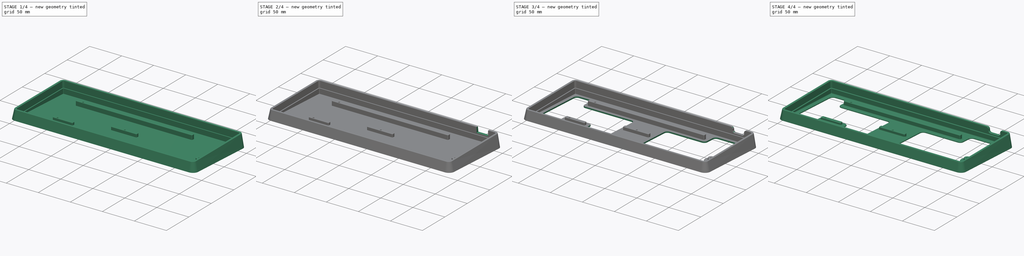
[diagram: build sequence overview — one tinted view per stage of 4, left to right]
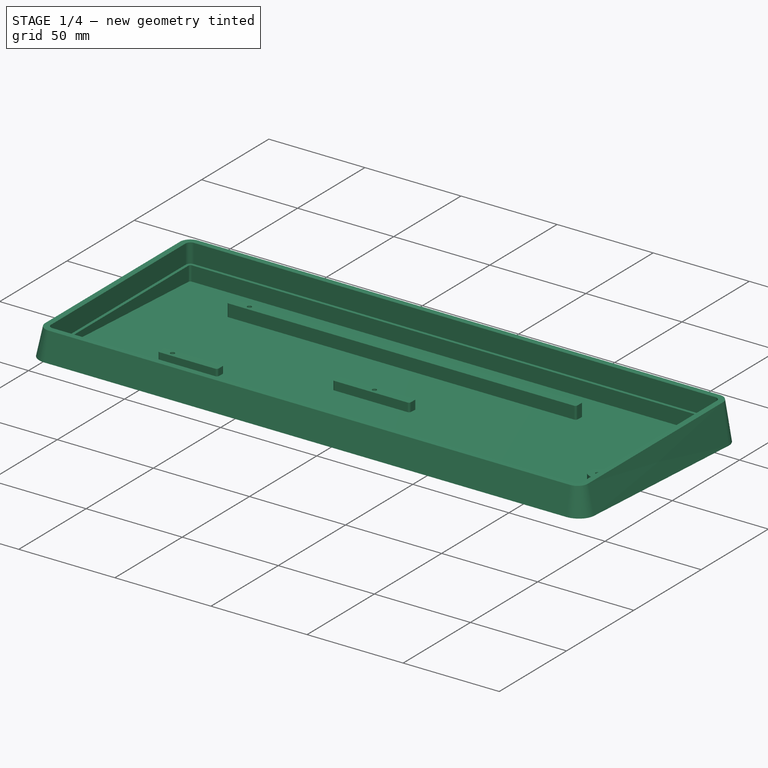
[diagram: stage 1 of 4 — iso view after this stage's code; geometry added in this stage tinted green]
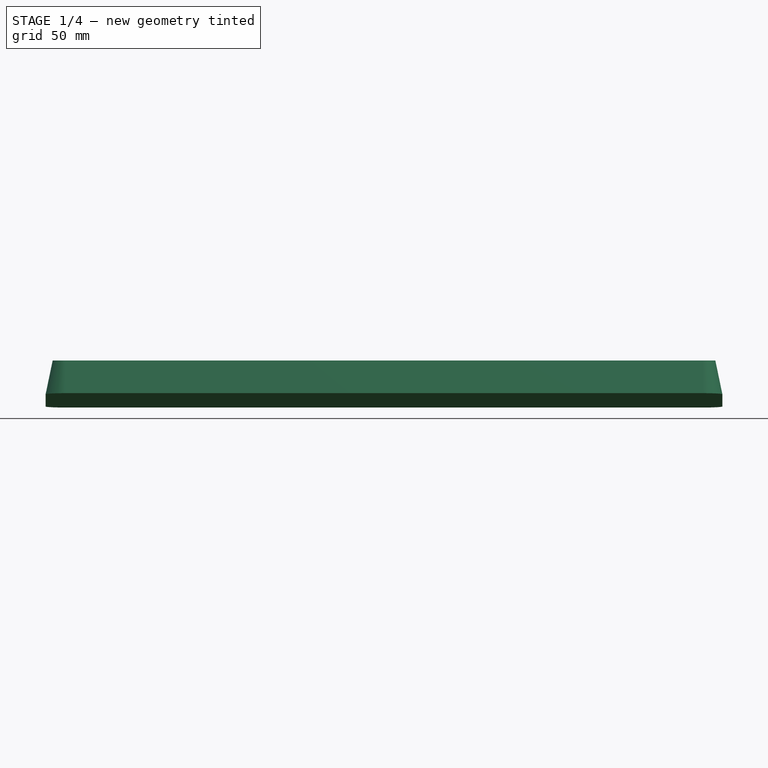
[diagram: stage 1 of 4 — front view after this stage's code; geometry added in this stage tinted green]
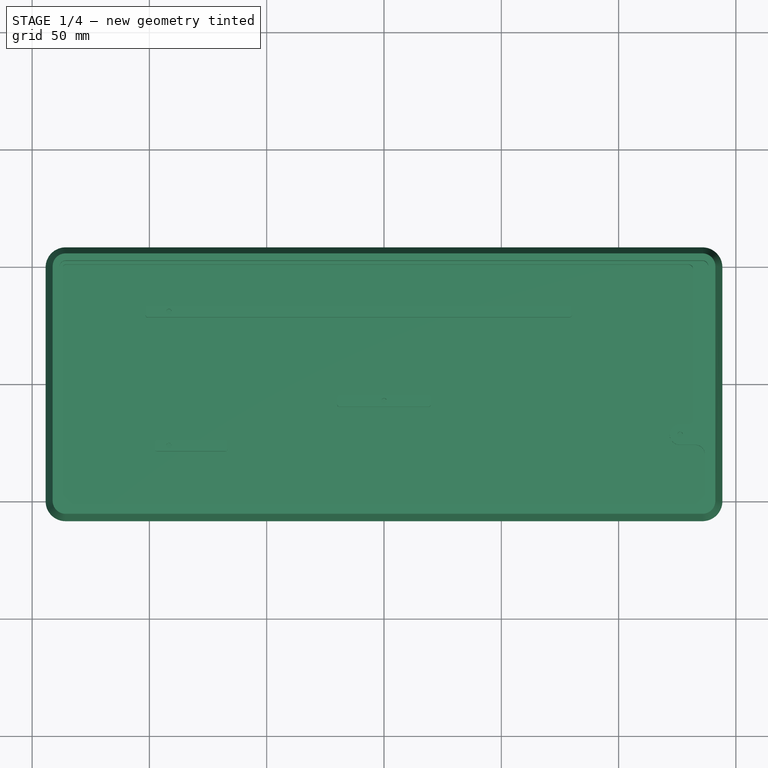
[diagram: stage 1 of 4 — top view after this stage's code; geometry added in this stage tinted green]
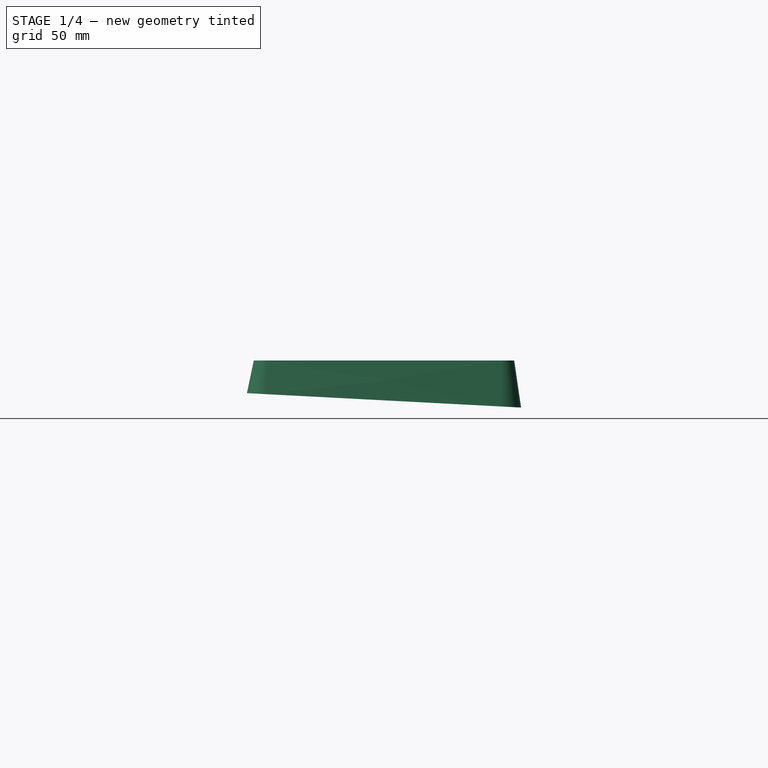
[diagram: stage 1 of 4 — right view after this stage's code; geometry added in this stage tinted green]
FCSTD DOCUMENT  (FreeCAD 0.21R)
Label: 65petit-case
License: All rights reserved
LicenseURL: http://en.wikipedia.org/wiki/All_rights_reserved
objects: Sketcher::SketchObject×7, PartDesign::Pocket×4, PartDesign::Fillet×4, PartDesign::AdditiveLoft×1, PartDesign::Hole×1, PartDesign::Chamfer×1, PartDesign::Body×1
note: 30 computed .brp shape members not serialized (recipe doc carries the construction recipe); baked Part::Feature solids carry a one-line shape summary decoded from their .brp

FEATURE [Sketcher::SketchObject] Sketch
  AttachmentOffset = pos=(0,0,0) rot=(1,0,0;-0.05236rad)
  FullyConstrained = false
  MapMode = 5
  Placement = pos=(0,0,0) rot=(1,0,0;6.23083rad)
  Support = -> [XY_Plane]
  sketch-geometry (8):
    g0: ArcOfCircle CenterX=135.731 CenterY=50.0063 CenterZ=0 NormalX=0 NormalY=0 NormalZ=1 AngleXU=0 Radius=8.5 StartAngle=0 EndAngle=1.5708
    g1: LineSegment StartX=144.231 StartY=-50.0062 StartZ=0 EndX=144.231 EndY=50.0063 EndZ=0
    g2: ArcOfCircle CenterX=135.731 CenterY=-50.0062 CenterZ=0 NormalX=0 NormalY=0 NormalZ=1 AngleXU=0 Radius=8.5 StartAngle=4.71239 EndAngle=6.28319
    g3: LineSegment StartX=-135.731 StartY=-58.5062 StartZ=0 EndX=135.731 EndY=-58.5062 EndZ=0
    g4: LineSegment StartX=-135.731 StartY=58.5063 StartZ=0 EndX=135.731 EndY=58.5063 EndZ=0
    g5: ArcOfCircle CenterX=-135.731 CenterY=-50.0062 CenterZ=0 NormalX=0 NormalY=0 NormalZ=1 AngleXU=0 Radius=8.5 StartAngle=3.14159 EndAngle=4.71239
    g6: LineSegment StartX=-144.231 StartY=-50.0062 StartZ=0 EndX=-144.231 EndY=50.0063 EndZ=0
    g7: ArcOfCircle CenterX=-135.731 CenterY=50.0063 CenterZ=0 NormalX=0 NormalY=0 NormalZ=1 AngleXU=0 Radius=8.5 StartAngle=1.5708 EndAngle=3.14159
  constraints (8):
    c: Coincident(g5,g6)
    c: Coincident(g6,g7)
    c: Coincident(g3,g5)
    c: Coincident(g4,g7)
    c: Coincident(g2,g3)
    c: Coincident(g0,g4)
    c: Coincident(g1,g2)
    c: Coincident(g0,g1)
FEATURE [Sketcher::SketchObject] Sketch001
  AttachmentOffset = pos=(0,0,17) rot=(0,0,1;0rad)
  FullyConstrained = false
  MapMode = 5
  Placement = pos=(0,0,17) rot=(0,0,1;0rad)
  Support = -> [XY_Plane]
  sketch-geometry (8):
    g0: ArcOfCircle CenterX=-135.731 CenterY=50.0063 CenterZ=0 NormalX=0 NormalY=0 NormalZ=1 AngleXU=0 Radius=5.5 StartAngle=1.5708 EndAngle=3.14159
    g1: LineSegment StartX=-135.731 StartY=55.5063 StartZ=0 EndX=135.731 EndY=55.5063 EndZ=0
    g2: LineSegment StartX=-141.231 StartY=-50.0062 StartZ=0 EndX=-141.231 EndY=50.0063 EndZ=0
    g3: LineSegment StartX=-135.731 StartY=-55.5062 StartZ=0 EndX=135.731 EndY=-55.5062 EndZ=0
    g4: ArcOfCircle CenterX=-135.731 CenterY=-50.0062 CenterZ=0 NormalX=0 NormalY=0 NormalZ=1 AngleXU=0 Radius=5.5 StartAngle=3.14159 EndAngle=4.71239
    g5: ArcOfCircle CenterX=135.731 CenterY=-50.0062 CenterZ=0 NormalX=0 NormalY=0 NormalZ=1 AngleXU=0 Radius=5.5 StartAngle=4.71239 EndAngle=6.28319
    g6: LineSegment StartX=141.231 StartY=-50.0062 StartZ=0 EndX=141.231 EndY=50.0063 EndZ=0
    g7: ArcOfCircle CenterX=135.731 CenterY=50.0063 CenterZ=0 NormalX=0 NormalY=0 NormalZ=1 AngleXU=0 Radius=5.5 StartAngle=0 EndAngle=1.5708
  constraints (8):
    c: Coincident(g2,g4)
    c: Coincident(g0,g2)
    c: Coincident(g3,g4)
    c: Coincident(g0,g1)
    c: Coincident(g3,g5)
    c: Coincident(g1,g7)
    c: Coincident(g5,g6)
    c: Coincident(g6,g7)
FEATURE [PartDesign::AdditiveLoft] AdditiveLoft
  Closed = false
  Profile = -> Sketch001
  Ruled = true
  Sections = -> [Sketch]
FEATURE [Sketcher::SketchObject] Sketch002
  FullyConstrained = false
  MapMode = 5
  Placement = pos=(0,0,17) rot=(0,0,1;0rad)
  Support = -> [AdditiveLoft]
  sketch-geometry (8):
    g0: ArcOfCircle CenterX=135.731 CenterY=50.0063 CenterZ=0 NormalX=0 NormalY=0 NormalZ=1 AngleXU=0 Radius=2.5 StartAngle=0 EndAngle=1.5708
    g1: LineSegment StartX=138.231 StartY=-50.0062 StartZ=0 EndX=138.231 EndY=50.0063 EndZ=0
    g2: LineSegment StartX=-135.731 StartY=52.5063 StartZ=0 EndX=135.731 EndY=52.5063 EndZ=0
    g3: ArcOfCircle CenterX=135.731 CenterY=-50.0062 CenterZ=0 NormalX=0 NormalY=0 NormalZ=1 AngleXU=0 Radius=2.5 StartAngle=4.71239 EndAngle=6.28319
    g4: LineSegment StartX=-135.731 StartY=-52.5062 StartZ=0 EndX=135.731 EndY=-52.5062 EndZ=0
    g5: ArcOfCircle CenterX=-135.731 CenterY=-50.0062 CenterZ=0 NormalX=0 NormalY=0 NormalZ=1 AngleXU=0 Radius=2.5 StartAngle=3.14159 EndAngle=4.71239
    g6: LineSegment StartX=-138.231 StartY=-50.0062 StartZ=0 EndX=-138.231 EndY=50.0063 EndZ=0
    g7: ArcOfCircle CenterX=-135.731 CenterY=50.0063 CenterZ=0 NormalX=0 NormalY=0 NormalZ=1 AngleXU=0 Radius=2.5 StartAngle=1.5708 EndAngle=3.14159
  constraints (8):
    c: Coincident(g5,g6)
    c: Coincident(g6,g7)
    c: Coincident(g4,g5)
    c: Coincident(g2,g7)
    c: Coincident(g3,g4)
    c: Coincident(g0,g2)
    c: Coincident(g1,g3)
    c: Coincident(g0,g1)
FEATURE [Sketcher::SketchObject] Sketch006
  FullyConstrained = false
  MapMode = 5
  Placement = pos=(0,0,17) rot=(0,0,1;0rad)
  Support = -> [AdditiveLoft]
  sketch-geometry (4):
    g0: LineSegment StartX=107.681 StartY=50.0063 StartZ=0 EndX=125.681 EndY=50.0063 EndZ=0
    g1: LineSegment StartX=125.681 StartY=50.0063 StartZ=0 EndX=125.681 EndY=63 EndZ=0
    g2: LineSegment StartX=107.681 StartY=63 StartZ=0 EndX=125.681 EndY=63 EndZ=0
    g3: LineSegment StartX=107.681 StartY=50.0063 StartZ=0 EndX=107.681 EndY=63 EndZ=0
  constraints (4):
    c: Coincident(g0,g3)
    c: Coincident(g2,g3)
    c: Coincident(g0,g1)
    c: Coincident(g1,g2)
FEATURE [PartDesign::Pocket] Pocket
  BaseFeature = -> AdditiveLoft
  Direction = (0,0,-1)
  Length = 10
  Length2 = 5
  Profile = -> Sketch002
  ReferenceAxis = -> Sketch002 [N_Axis]
  Type = 0
FEATURE [Sketcher::SketchObject] Sketch003
  FullyConstrained = false
  MapMode = 5
  Placement = pos=(0,0,7) rot=(0,0,1;0rad)
  Support = -> [Pocket]
  sketch-geometry (46):
    g0: ArcOfCircle CenterX=-135.731 CenterY=50.0063 CenterZ=0 NormalX=0 NormalY=0 NormalZ=1 AngleXU=0 Radius=1 StartAngle=1.5708 EndAngle=3.14159
    g1: LineSegment StartX=132.731 StartY=-25.9312 StartZ=0 EndX=126.206 EndY=-25.9312 EndZ=0
    g2: ArcOfCircle CenterX=132.731 CenterY=-29.9312 CenterZ=0 NormalX=0 NormalY=0 NormalZ=1 AngleXU=0 Radius=4 StartAngle=0 EndAngle=1.5708
    g3: ArcOfCircle CenterX=126.206 CenterY=-21.4312 CenterZ=0 NormalX=0 NormalY=0 NormalZ=1 AngleXU=0 Radius=4.5 StartAngle=1.5708 EndAngle=4.71239
    g4: LineSegment StartX=-135.731 StartY=51.0063 StartZ=0 EndX=129.731 EndY=51.0063 EndZ=0
    g5: ArcOfCircle CenterX=129.731 CenterY=49.0063 CenterZ=0 NormalX=0 NormalY=0 NormalZ=1 AngleXU=0 Radius=2 StartAngle=0 EndAngle=1.5708
    g6: LineSegment StartX=129.731 StartY=-16.9312 StartZ=0 EndX=126.206 EndY=-16.9312 EndZ=0
    g7: LineSegment StartX=131.731 StartY=-14.9312 StartZ=0 EndX=131.731 EndY=49.0063 EndZ=0
    g8: ArcOfCircle CenterX=129.731 CenterY=-14.9312 CenterZ=0 NormalX=0 NormalY=0 NormalZ=1 AngleXU=0 Radius=2 StartAngle=4.71239 EndAngle=6.28319
    g9: Circle CenterX=-1.42e-14 CenterY=-7.12472 CenterZ=0 NormalX=0 NormalY=0 NormalZ=-1 AngleXU=0 Radius=1.1
    g10: Circle CenterX=-91.6781 CenterY=30.9563 CenterZ=0 NormalX=0 NormalY=0 NormalZ=-1 AngleXU=0 Radius=1.1
    g11: Circle CenterX=-91.6781 CenterY=-26.1937 CenterZ=0 NormalX=0 NormalY=0 NormalZ=-1 AngleXU=0 Radius=1.1
    g12: ArcOfCircle CenterX=-100.678 CenterY=32.4563 CenterZ=0 NormalX=0 NormalY=0 NormalZ=1 AngleXU=0 Radius=1 StartAngle=1.5708 EndAngle=3.14159
    g13: LineSegment StartX=-101.678 StartY=29.4563 StartZ=0 EndX=-101.678 EndY=32.4563 EndZ=0
    g14: ArcOfCircle CenterX=-100.678 CenterY=29.4563 CenterZ=0 NormalX=0 NormalY=0 NormalZ=1 AngleXU=0 Radius=1 StartAngle=3.14159 EndAngle=4.71239
    g15: Circle CenterX=126.206 CenterY=-21.4312 CenterZ=0 NormalX=0 NormalY=0 NormalZ=-1 AngleXU=0 Radius=1.1
    g16: LineSegment StartX=136.731 StartY=-46.7636 StartZ=0 EndX=136.731 EndY=-29.9312 EndZ=0
    g17: ArcOfCircle CenterX=135.731 CenterY=-46.7636 CenterZ=0 NormalX=0 NormalY=0 NormalZ=1 AngleXU=0 Radius=1 StartAngle=5.49779 EndAngle=6.28319
    g18: LineSegment StartX=133.196 StartY=-50.7134 StartZ=0 EndX=136.438 EndY=-47.4707 EndZ=0
    g19: ArcOfCircle CenterX=132.489 CenterY=-50.0062 CenterZ=0 NormalX=0 NormalY=0 NormalZ=1 AngleXU=0 Radius=1 StartAngle=4.71239 EndAngle=5.49779
    g20: LineSegment StartX=-132.489 StartY=-51.0062 StartZ=0 EndX=132.489 EndY=-51.0062 EndZ=0
    g21: ArcOfCircle CenterX=-132.489 CenterY=-50.0062 CenterZ=0 NormalX=0 NormalY=0 NormalZ=1 AngleXU=0 Radius=1 StartAngle=3.92699 EndAngle=4.71239
    g22: LineSegment StartX=-136.438 StartY=-47.4707 StartZ=0 EndX=-133.196 EndY=-50.7134 EndZ=0
    g23: LineSegment StartX=-136.731 StartY=-46.7636 StartZ=0 EndX=-136.731 EndY=50.0063 EndZ=0
    g24: ArcOfCircle CenterX=-135.731 CenterY=-46.7636 CenterZ=0 NormalX=0 NormalY=0 NormalZ=1 AngleXU=0 Radius=1 StartAngle=3.14159 EndAngle=3.92699
    g25: LineSegment StartX=-100.678 StartY=33.4563 StartZ=0 EndX=79 EndY=33.4563 EndZ=0
    g26: ArcOfCircle CenterX=79 CenterY=32.4563 CenterZ=0 NormalX=0 NormalY=0 NormalZ=1 AngleXU=0 Radius=1 StartAngle=0 EndAngle=1.5708
    g27: LineSegment StartX=-100.678 StartY=28.4563 StartZ=0 EndX=79 EndY=28.4563 EndZ=0
    g28: LineSegment StartX=80 StartY=32.4563 StartZ=0 EndX=80 EndY=29.4563 EndZ=0
    g29: ArcOfCircle CenterX=79 CenterY=29.4563 CenterZ=0 NormalX=0 NormalY=0 NormalZ=1 AngleXU=0 Radius=1 StartAngle=4.71239 EndAngle=6.28319
    g30: ArcOfCircle CenterX=-96.6781 CenterY=-24.6937 CenterZ=0 NormalX=0 NormalY=0 NormalZ=1 AngleXU=0 Radius=1 StartAngle=1.5708 EndAngle=3.14159
    g31: LineSegment StartX=-97.6781 StartY=-27.6937 StartZ=0 EndX=-97.6781 EndY=-24.6937 EndZ=0
    g32: ArcOfCircle CenterX=-96.6781 CenterY=-27.6937 CenterZ=0 NormalX=0 NormalY=0 NormalZ=1 AngleXU=0 Radius=1 StartAngle=3.14159 EndAngle=4.71239
    g33: LineSegment StartX=-96.6781 StartY=-23.6937 StartZ=0 EndX=-67.6781 EndY=-23.6937 EndZ=0
    g34: ArcOfCircle CenterX=-67.6781 CenterY=-24.6937 CenterZ=0 NormalX=0 NormalY=0 NormalZ=1 AngleXU=0 Radius=1 StartAngle=0 EndAngle=1.5708
    g35: LineSegment StartX=-66.6781 StartY=-27.6937 StartZ=0 EndX=-66.6781 EndY=-24.6937 EndZ=0
    g36: LineSegment StartX=-96.6781 StartY=-28.6937 StartZ=0 EndX=-67.6781 EndY=-28.6937 EndZ=0
    g37: ArcOfCircle CenterX=-67.6781 CenterY=-27.6937 CenterZ=0 NormalX=0 NormalY=0 NormalZ=1 AngleXU=0 Radius=1 StartAngle=4.71239 EndAngle=6.28319
    g38: ArcOfCircle CenterX=19 CenterY=-5.62472 CenterZ=0 NormalX=0 NormalY=0 NormalZ=1 AngleXU=0 Radius=1 StartAngle=0 EndAngle=1.5708
    g39: LineSegment StartX=20 StartY=-5.62472 StartZ=0 EndX=20 EndY=-8.62472 EndZ=0
    g40: ArcOfCircle CenterX=19 CenterY=-8.62472 CenterZ=0 NormalX=0 NormalY=0 NormalZ=1 AngleXU=0 Radius=1 StartAngle=4.71239 EndAngle=6.28319
    g41: LineSegment StartX=-19 StartY=-9.62472 StartZ=0 EndX=19 EndY=-9.62472 EndZ=0
    g42: ArcOfCircle CenterX=-19 CenterY=-8.62472 CenterZ=0 NormalX=0 NormalY=0 NormalZ=1 AngleXU=0 Radius=1 StartAngle=3.14159 EndAngle=4.71239
    g43: LineSegment StartX=-20 StartY=-5.62472 StartZ=0 EndX=-20 EndY=-8.62472 EndZ=0
    g44: LineSegment StartX=-19 StartY=-4.62472 StartZ=0 EndX=19 EndY=-4.62472 EndZ=0
    g45: ArcOfCircle CenterX=-19 CenterY=-5.62472 CenterZ=0 NormalX=0 NormalY=0 NormalZ=1 AngleXU=0 Radius=1 StartAngle=1.5708 EndAngle=3.14159
  constraints (42):
    c: Coincident(g23,g24)
    c: Coincident(g0,g23)
    c: Coincident(g22,g24)
    c: Coincident(g0,g4)
    c: Coincident(g21,g22)
    c: Coincident(g20,g21)
    c: Coincident(g13,g14)
    c: Coincident(g12,g13)
    c: Coincident(g14,g27)
    c: Coincident(g12,g25)
    c: Coincident(g31,g32)
    c: Coincident(g30,g31)
    c: Coincident(g32,g36)
    c: Coincident(g30,g33)
    c: Coincident(g36,g37)
    c: Coincident(g33,g34)
    c: Coincident(g35,g37)
    c: Coincident(g34,g35)
    c: Coincident(g42,g43)
    c: Coincident(g43,g45)
    c: Coincident(g41,g42)
    c: Coincident(g44,g45)
    c: Coincident(g40,g41)
    c: Coincident(g38,g44)
    c: Coincident(g39,g40)
    c: Coincident(g38,g39)
    c: Coincident(g27,g29)
    c: Coincident(g25,g26)
    c: Coincident(g28,g29)
    c: Coincident(g26,g28)
    c: Coincident(g1,g3)
    c: Coincident(g3,g6)
    c: Coincident(g6,g8)
    c: Coincident(g4,g5)
    c: Coincident(g7,g8)
    c: Coincident(g5,g7)
    c: Coincident(g19,g20)
    c: Coincident(g1,g2)
    c: Coincident(g18,g19)
    c: Coincident(g17,g18)
    c: Coincident(g16,g17)
    c: Coincident(g2,g16)
FEATURE [Sketcher::SketchObject] Sketch004
  FullyConstrained = false
  MapMode = 5
  Placement = pos=(0,0,7) rot=(0,0,1;0rad)
  Support = -> [Pocket]
  sketch-geometry (4):
    g0: Circle CenterX=-1.42e-14 CenterY=-7.12472 CenterZ=0 NormalX=0 NormalY=0 NormalZ=-1 AngleXU=0 Radius=1.1
    g1: Circle CenterX=-91.6781 CenterY=30.9563 CenterZ=0 NormalX=0 NormalY=0 NormalZ=-1 AngleXU=0 Radius=1.1
    g2: Circle CenterX=-91.6781 CenterY=-26.1937 CenterZ=0 NormalX=0 NormalY=0 NormalZ=-1 AngleXU=0 Radius=1.1
    g3: Circle CenterX=126.206 CenterY=-21.4312 CenterZ=0 NormalX=0 NormalY=0 NormalZ=-1 AngleXU=0 Radius=1.1
FEATURE [PartDesign::Pocket] Pocket001
  BaseFeature = -> Pocket
  Direction = (0,0,-1)
  Length = 0
  Length2 = 5
  Offset = -2
  Profile = -> Sketch003
  ReferenceAxis = -> Sketch003 [N_Axis]
  Type = 3
  UpToFace = -> Pocket [Face18]
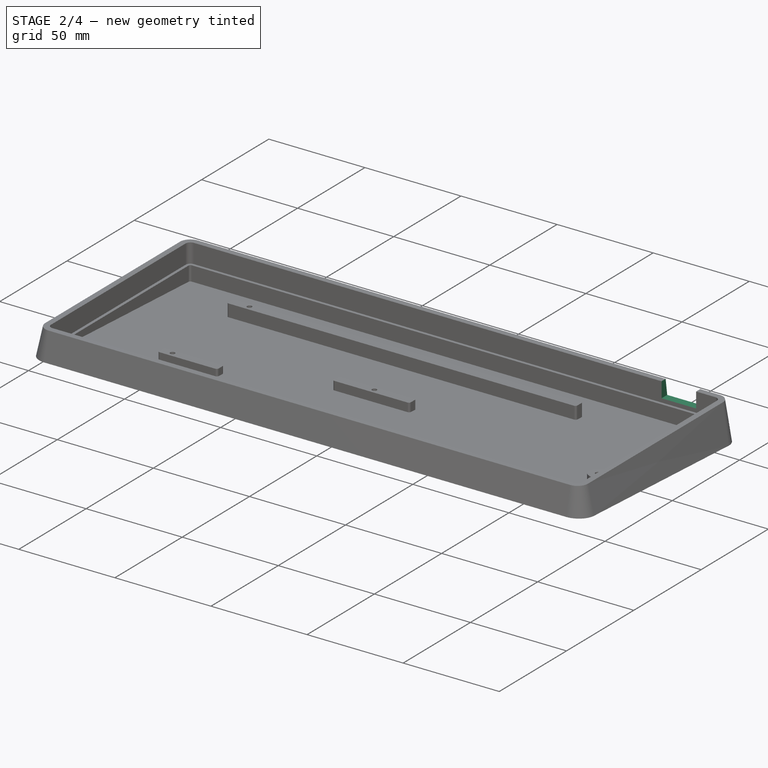
[diagram: stage 2 of 4 — iso view after this stage's code; geometry added in this stage tinted green]
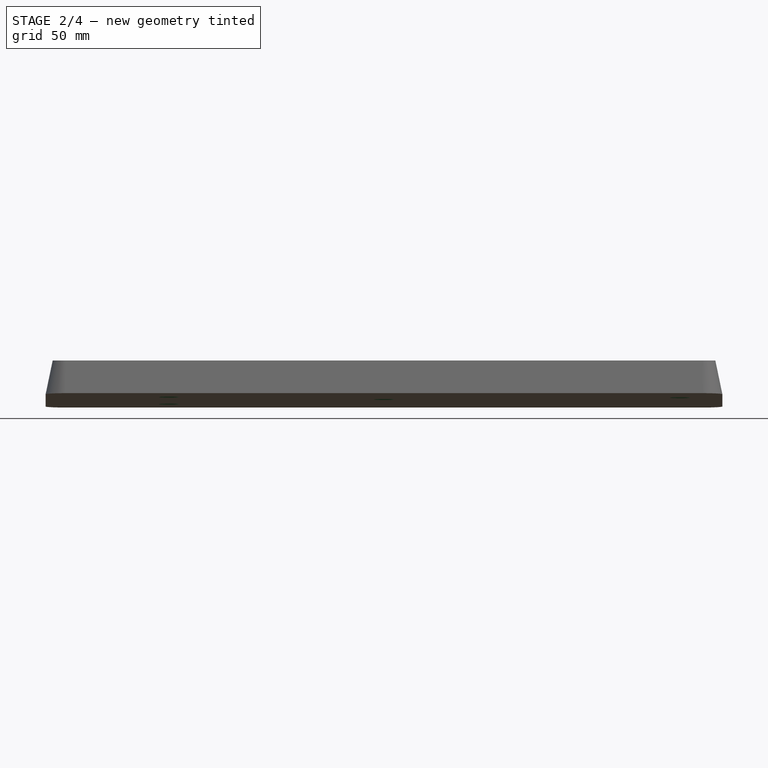
[diagram: stage 2 of 4 — front view after this stage's code; geometry added in this stage tinted green]
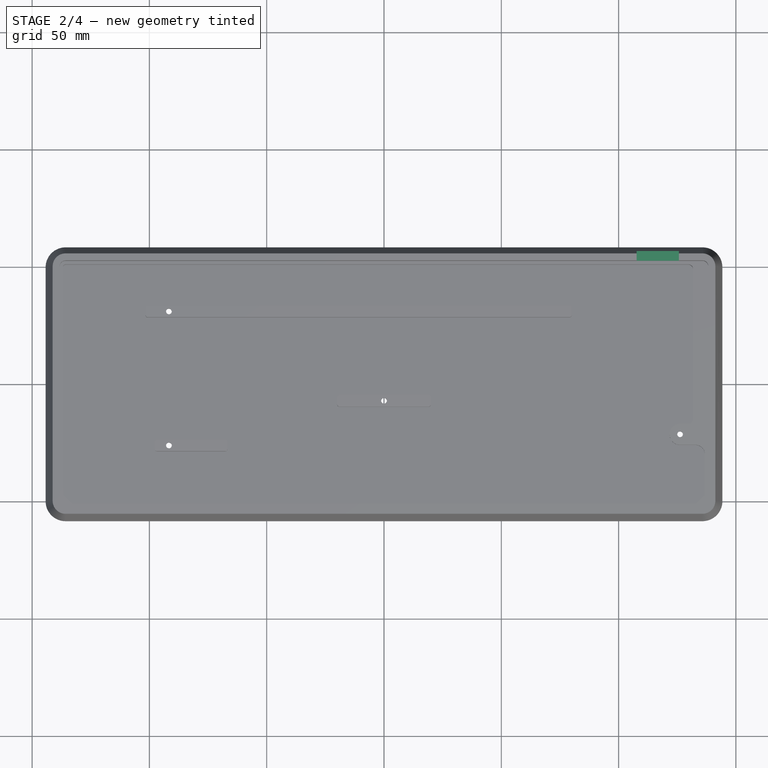
[diagram: stage 2 of 4 — top view after this stage's code; geometry added in this stage tinted green]
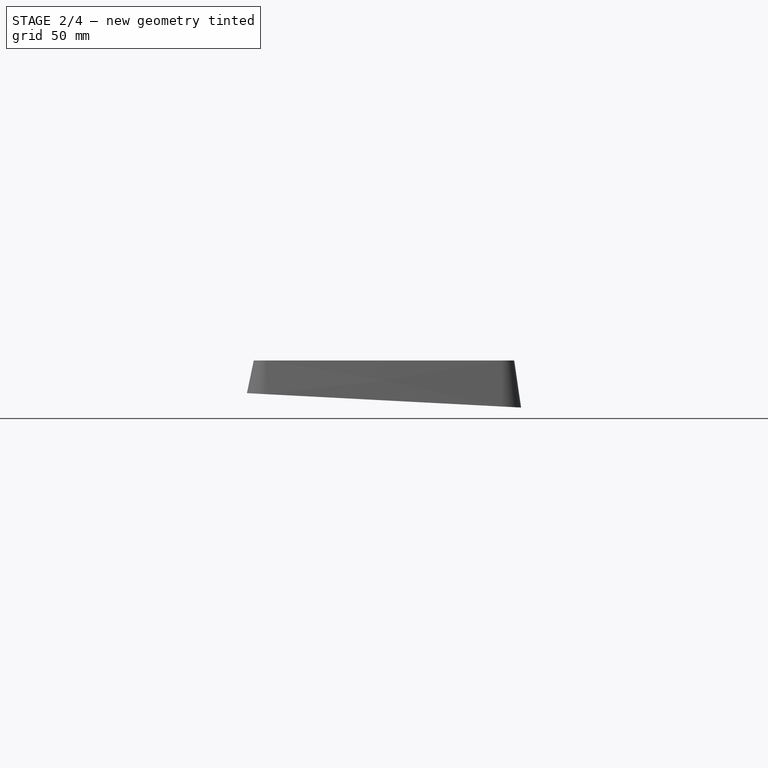
[diagram: stage 2 of 4 — right view after this stage's code; geometry added in this stage tinted green]
FEATURE [PartDesign::Hole] Hole
  BaseFeature = -> Pocket001
  CustomThreadClearance = 0
  Depth = 629.992
  DepthType = 1
  Diameter = 2.42
  DrillForDepth = false
  DrillPoint = 1
  DrillPointAngle = 118
  HoleCutCountersinkAngle = 90
  HoleCutCustomValues = false
  HoleCutDepth = 0
  HoleCutDiameter = 6.1
  HoleCutType = 0
  ModelThread = false
  Profile = -> Sketch004
  Tapered = false
  TaperedAngle = 90
  ThreadClass = 0
  ThreadDepth = 629.992
  ThreadDepthType = 0
  ThreadDirection = 0
  ThreadFit = 0
  ThreadSize = 7
  ThreadType = 1
  Threaded = false
  UseCustomThreadClearance = false
FEATURE [PartDesign::Chamfer] Chamfer
  Angle = 45
  Base = -> Hole [Edge50,Edge49,Edge51,Edge52]
  BaseFeature = -> Hole
  ChamferType = 0
  FlipDirection = false
  Size = 3
  Size2 = 1
  SupportTransform = false
  UseAllEdges = false
FEATURE [PartDesign::Pocket] Pocket002
  BaseFeature = -> Chamfer
  Direction = (0,0,-1)
  Length = 0
  Length2 = 5
  Offset = -2
  Profile = -> Sketch006
  ReferenceAxis = -> Sketch006 [N_Axis]
  Type = 3
  UpToFace = -> Chamfer [Face28]
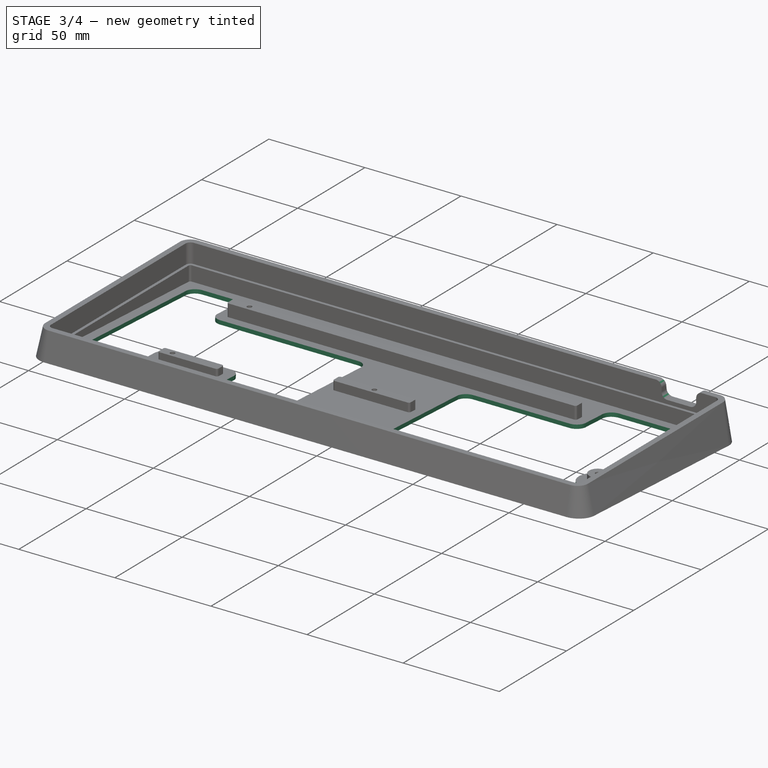
[diagram: stage 3 of 4 — iso view after this stage's code; geometry added in this stage tinted green]
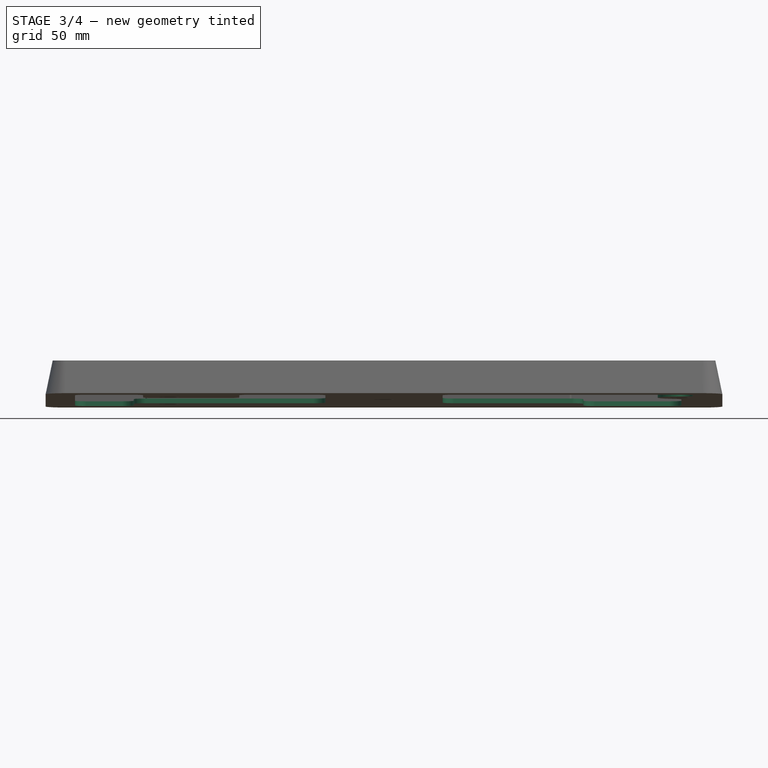
[diagram: stage 3 of 4 — front view after this stage's code; geometry added in this stage tinted green]
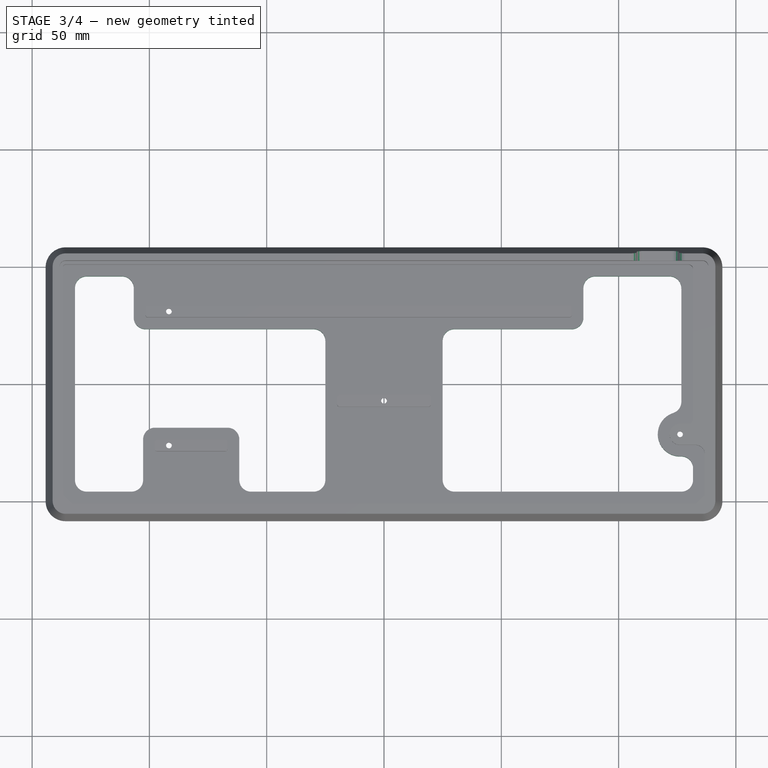
[diagram: stage 3 of 4 — top view after this stage's code; geometry added in this stage tinted green]
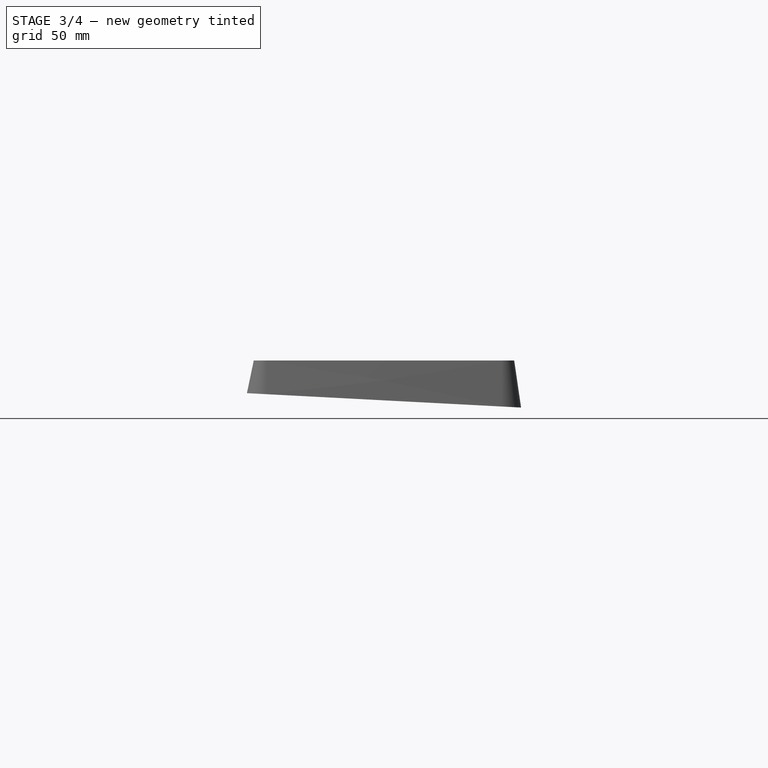
[diagram: stage 3 of 4 — right view after this stage's code; geometry added in this stage tinted green]
FEATURE [Sketcher::SketchObject] Sketch007
  FullyConstrained = false
  MapMode = 5
  Placement = pos=(0,0.104528,1.99452) rot=(-1,0,0;0.05236rad)
  Support = -> [Pocket001]
  sketch-geometry (36):
    g0: ArcOfCircle CenterX=121.731 CenterY=-7.63906 CenterZ=0 NormalX=0 NormalY=0 NormalZ=1 AngleXU=0 Radius=5 StartAngle=5.02613 EndAngle=6.28319
    g1: ArcOfCircle CenterX=126.206 CenterY=-21.4312 CenterZ=0 NormalX=0 NormalY=0 NormalZ=1 AngleXU=0 Radius=9.5 StartAngle=1.88454 EndAngle=4.7486
    g2: ArcOfCircle CenterX=126.731 CenterY=-35.9217 CenterZ=0 NormalX=0 NormalY=0 NormalZ=1 AngleXU=0 Radius=5 StartAngle=0 EndAngle=1.60701
    g3: LineSegment StartX=131.731 StartY=-41.0062 StartZ=0 EndX=131.731 EndY=-35.9217 EndZ=0
    g4: ArcOfCircle CenterX=126.731 CenterY=-41.0062 CenterZ=0 NormalX=0 NormalY=0 NormalZ=1 AngleXU=0 Radius=5 StartAngle=4.71239 EndAngle=6.28319
    g5: ArcOfCircle CenterX=80 CenterY=28.4563 CenterZ=0 NormalX=0 NormalY=0 NormalZ=1 AngleXU=0 Radius=5 StartAngle=4.71239 EndAngle=6.28319
    g6: LineSegment StartX=85 StartY=41.0063 StartZ=0 EndX=85 EndY=28.4563 EndZ=0
    g7: ArcOfCircle CenterX=90 CenterY=41.0063 CenterZ=0 NormalX=0 NormalY=0 NormalZ=1 AngleXU=0 Radius=5 StartAngle=1.5708 EndAngle=3.14159
    g8: LineSegment StartX=90 StartY=46.0063 StartZ=0 EndX=121.731 EndY=46.0063 EndZ=0
    g9: LineSegment StartX=126.731 StartY=-7.63906 StartZ=0 EndX=126.731 EndY=41.0063 EndZ=0
    g10: ArcOfCircle CenterX=121.731 CenterY=41.0063 CenterZ=0 NormalX=0 NormalY=0 NormalZ=1 AngleXU=0 Radius=5 StartAngle=0 EndAngle=1.5708
    g11: ArcOfCircle CenterX=-126.731 CenterY=41.0063 CenterZ=0 NormalX=0 NormalY=0 NormalZ=1 AngleXU=0 Radius=5 StartAngle=1.5708 EndAngle=3.14159
    g12: LineSegment StartX=-126.731 StartY=46.0063 StartZ=0 EndX=-111.678 EndY=46.0063 EndZ=0
    g13: ArcOfCircle CenterX=-111.678 CenterY=41.0063 CenterZ=0 NormalX=0 NormalY=0 NormalZ=1 AngleXU=0 Radius=5 StartAngle=0 EndAngle=1.5708
    g14: LineSegment StartX=-106.678 StartY=28.4563 StartZ=0 EndX=-106.678 EndY=41.0063 EndZ=0
    g15: ArcOfCircle CenterX=-101.678 CenterY=28.4563 CenterZ=0 NormalX=0 NormalY=0 NormalZ=1 AngleXU=0 Radius=5 StartAngle=3.14159 EndAngle=4.71239
    g16: LineSegment StartX=-131.731 StartY=-41.0062 StartZ=0 EndX=-131.731 EndY=41.0063 EndZ=0
    g17: ArcOfCircle CenterX=-126.731 CenterY=-41.0062 CenterZ=0 NormalX=0 NormalY=0 NormalZ=1 AngleXU=0 Radius=5 StartAngle=3.14159 EndAngle=4.71239
    g18: LineSegment StartX=-126.731 StartY=-46.0062 StartZ=0 EndX=-107.678 EndY=-46.0062 EndZ=0
    g19: ArcOfCircle CenterX=-107.678 CenterY=-41.0062 CenterZ=0 NormalX=0 NormalY=0 NormalZ=1 AngleXU=0 Radius=5 StartAngle=4.71239 EndAngle=6.28319
    g20: LineSegment StartX=30 StartY=-46.0062 StartZ=0 EndX=126.731 EndY=-46.0062 EndZ=0
    g21: ArcOfCircle CenterX=30 CenterY=-41.0062 CenterZ=0 NormalX=0 NormalY=0 NormalZ=1 AngleXU=0 Radius=5 StartAngle=3.14159 EndAngle=4.71239
    g22: LineSegment StartX=-102.678 StartY=-23.6937 StartZ=0 EndX=-102.678 EndY=-41.0062 EndZ=0
    g23: ArcOfCircle CenterX=-97.6781 CenterY=-23.6937 CenterZ=0 NormalX=0 NormalY=0 NormalZ=1 AngleXU=0 Radius=5 StartAngle=1.5708 EndAngle=3.14159
    g24: LineSegment StartX=-97.6781 StartY=-18.6937 StartZ=0 EndX=-66.6781 EndY=-18.6937 EndZ=0
    g25: ArcOfCircle CenterX=-66.6781 CenterY=-23.6937 CenterZ=0 NormalX=0 NormalY=0 NormalZ=1 AngleXU=0 Radius=5 StartAngle=0 EndAngle=1.5708
    g26: LineSegment StartX=-61.6781 StartY=-41.0062 StartZ=0 EndX=-61.6781 EndY=-23.6937 EndZ=0
    g27: ArcOfCircle CenterX=-56.6781 CenterY=-41.0062 CenterZ=0 NormalX=0 NormalY=0 NormalZ=1 AngleXU=0 Radius=5 StartAngle=3.14159 EndAngle=4.71239
    g28: LineSegment StartX=-56.6781 StartY=-46.0062 StartZ=0 EndX=-30 EndY=-46.0062 EndZ=0
    g29: ArcOfCircle CenterX=-30 CenterY=-41.0062 CenterZ=0 NormalX=0 NormalY=0 NormalZ=1 AngleXU=0 Radius=5 StartAngle=4.71239 EndAngle=6.28319
    g30: LineSegment StartX=-101.678 StartY=23.4563 StartZ=0 EndX=-30 EndY=23.4563 EndZ=0
    g31: LineSegment StartX=-25 StartY=18.4563 StartZ=0 EndX=-25 EndY=-41.0062 EndZ=0
    g32: ArcOfCircle CenterX=-30 CenterY=18.4563 CenterZ=0 NormalX=0 NormalY=0 NormalZ=1 AngleXU=0 Radius=5 StartAngle=0 EndAngle=1.5708
    g33: LineSegment StartX=25 StartY=18.4563 StartZ=0 EndX=25 EndY=-41.0062 EndZ=0
    g34: LineSegment StartX=30 StartY=23.4563 StartZ=0 EndX=80 EndY=23.4563 EndZ=0
    g35: ArcOfCircle CenterX=30 CenterY=18.4563 CenterZ=0 NormalX=0 NormalY=0 NormalZ=1 AngleXU=0 Radius=5 StartAngle=1.5708 EndAngle=3.14159
  constraints (36):
    c: Coincident(g16,g17)
    c: Coincident(g11,g16)
    c: Coincident(g17,g18)
    c: Coincident(g11,g12)
    c: Coincident(g12,g13)
    c: Coincident(g18,g19)
    c: Coincident(g14,g15)
    c: Coincident(g13,g14)
    c: Coincident(g19,g22)
    c: Coincident(g22,g23)
    c: Coincident(g15,g30)
    c: Coincident(g23,g24)
    c: Coincident(g24,g25)
    c: Coincident(g26,g27)
    c: Coincident(g25,g26)
    c: Coincident(g27,g28)
    c: Coincident(g28,g29)
    c: Coincident(g30,g32)
    c: Coincident(g29,g31)
    c: Coincident(g31,g32)
    c: Coincident(g21,g33)
    c: Coincident(g33,g35)
    c: Coincident(g20,g21)
    c: Coincident(g34,g35)
    c: Coincident(g5,g34)
    c: Coincident(g5,g6)
    c: Coincident(g6,g7)
    c: Coincident(g7,g8)
    c: Coincident(g8,g10)
    c: Coincident(g0,g1)
    c: Coincident(g1,g2)
    c: Coincident(g4,g20)
    c: Coincident(g0,g9)
    c: Coincident(g9,g10)
    c: Coincident(g3,g4)
    c: Coincident(g2,g3)
FEATURE [PartDesign::Pocket] Pocket003
  BaseFeature = -> Pocket002
  Direction = (0,-0.052336,-0.99863)
  Length = 5
  Length2 = 5
  Profile = -> Sketch007
  ReferenceAxis = -> Sketch007 [N_Axis]
  Type = 1
FEATURE [PartDesign::Fillet] Fillet
  Base = -> Pocket003 [Edge160,Edge149,Edge159,Edge163]
  BaseFeature = -> Pocket003
  Radius = 3
  SupportTransform = false
  UseAllEdges = false
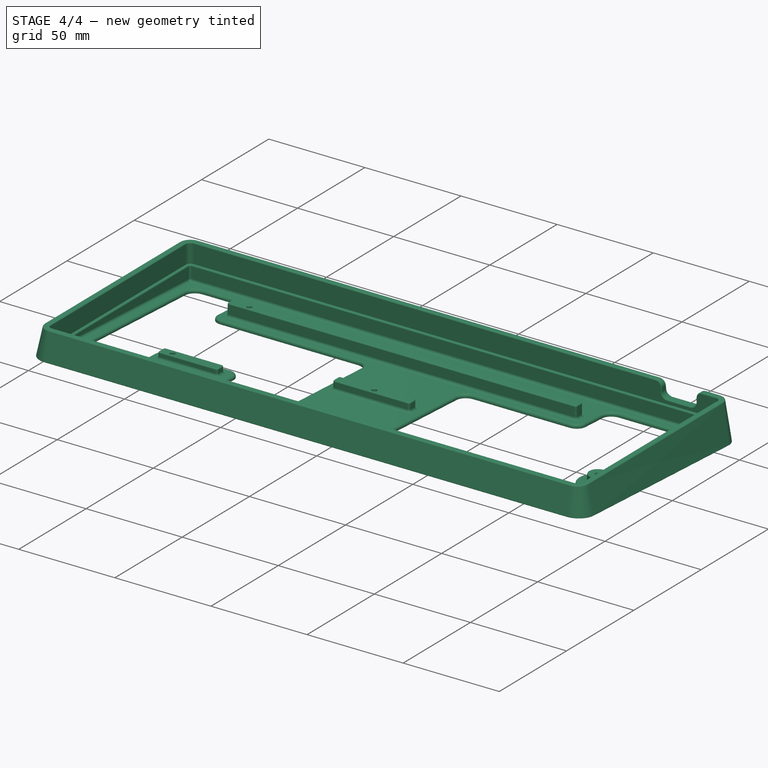
[diagram: stage 4 of 4 — iso view after this stage's code; geometry added in this stage tinted green]
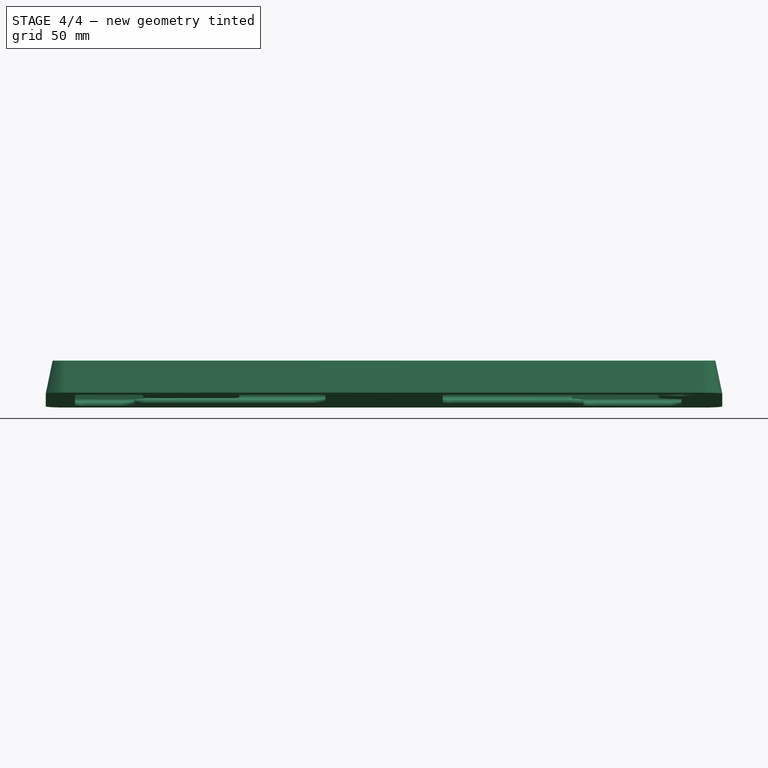
[diagram: stage 4 of 4 — front view after this stage's code; geometry added in this stage tinted green]
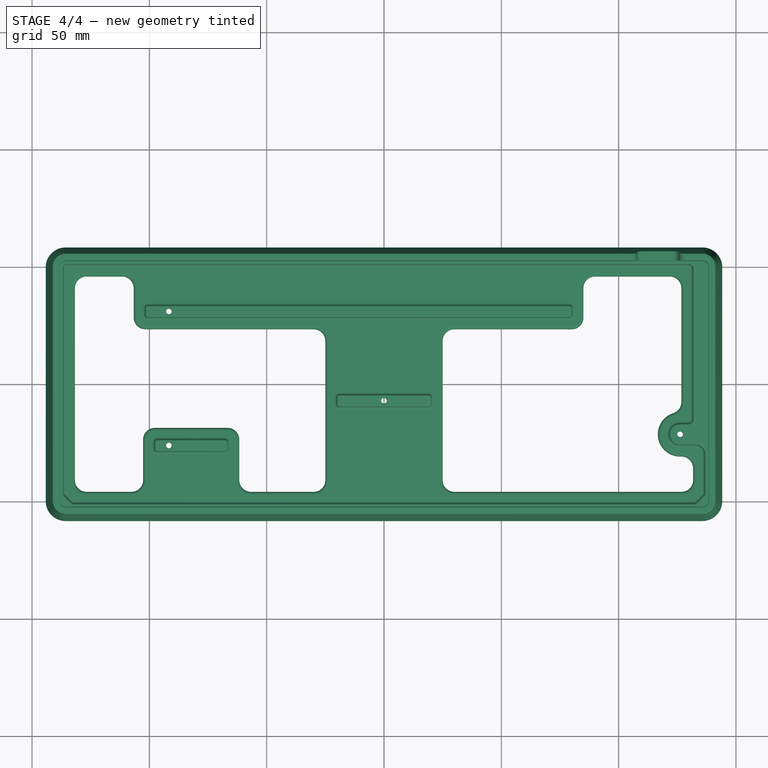
[diagram: stage 4 of 4 — top view after this stage's code; geometry added in this stage tinted green]
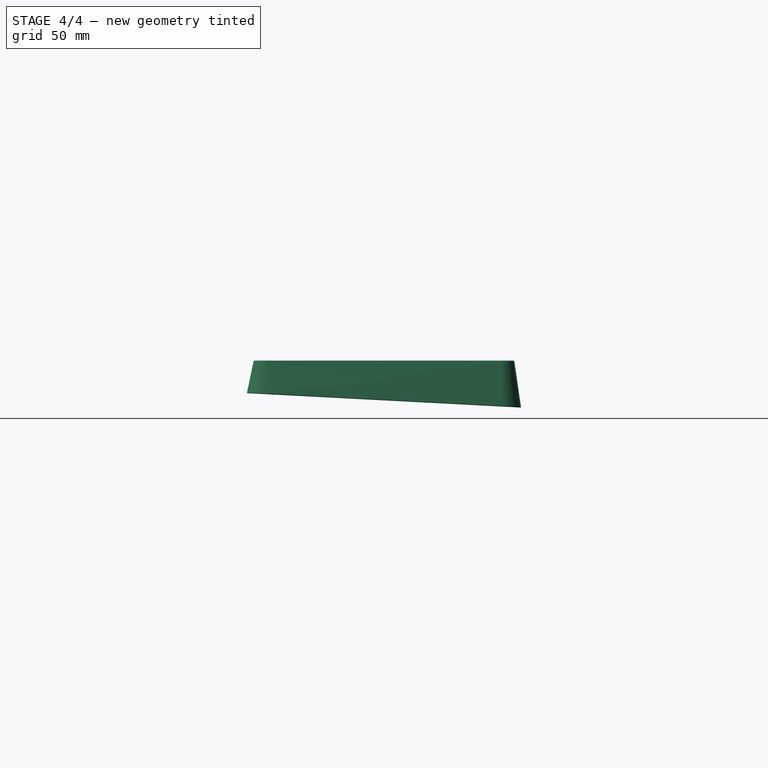
[diagram: stage 4 of 4 — right view after this stage's code; geometry added in this stage tinted green]
FEATURE [PartDesign::Fillet] Fillet001
  Base = -> Fillet [Face68]
  BaseFeature = -> Fillet
  Radius = 1.25
  SupportTransform = false
  UseAllEdges = false
FEATURE [PartDesign::Fillet] Fillet002
  Base = -> Fillet001 [Edge392,Edge342,Edge140,Face187,Face189,Face188,Edge366]
  BaseFeature = -> Fillet001
  Radius = 0.5
  SupportTransform = false
  UseAllEdges = false
FEATURE [PartDesign::Fillet] Fillet003
  Base = -> Fillet002 [Face4]
  BaseFeature = -> Fillet002
  Radius = 0.3
  SupportTransform = false
  UseAllEdges = false
FEATURE [PartDesign::Body] Body  label="Corps"
  Group = -> [Sketch,Sketch001,Sketch002,AdditiveLoft,Pocket,Sketch003,Sketch004,Sketch006,Pocket001,Hole,Chamfer,Pocket002,Sketch007,Pocket003,Fillet,Fillet001,Fillet002,Fillet003]
  Origin = -> Origin
  Tip = -> Fillet003
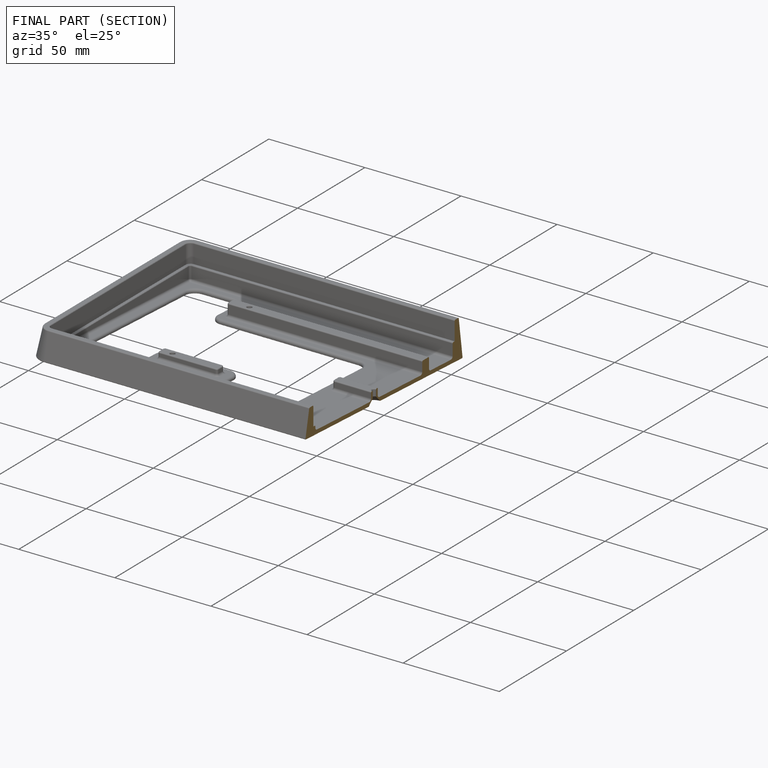
[diagram: finished part — half-section view (interior)]
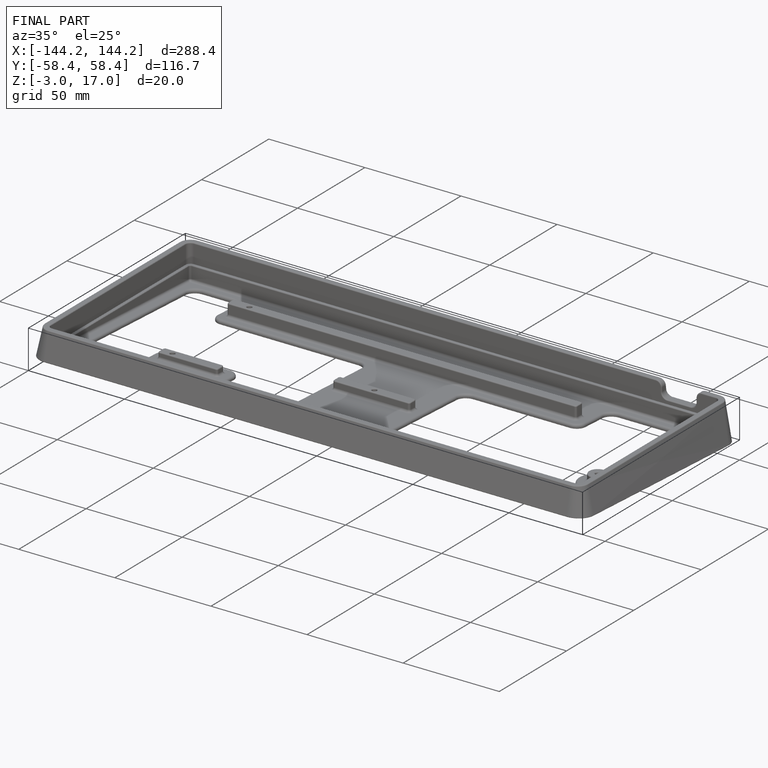
[diagram: finished part — iso view with bounding-box wireframe]
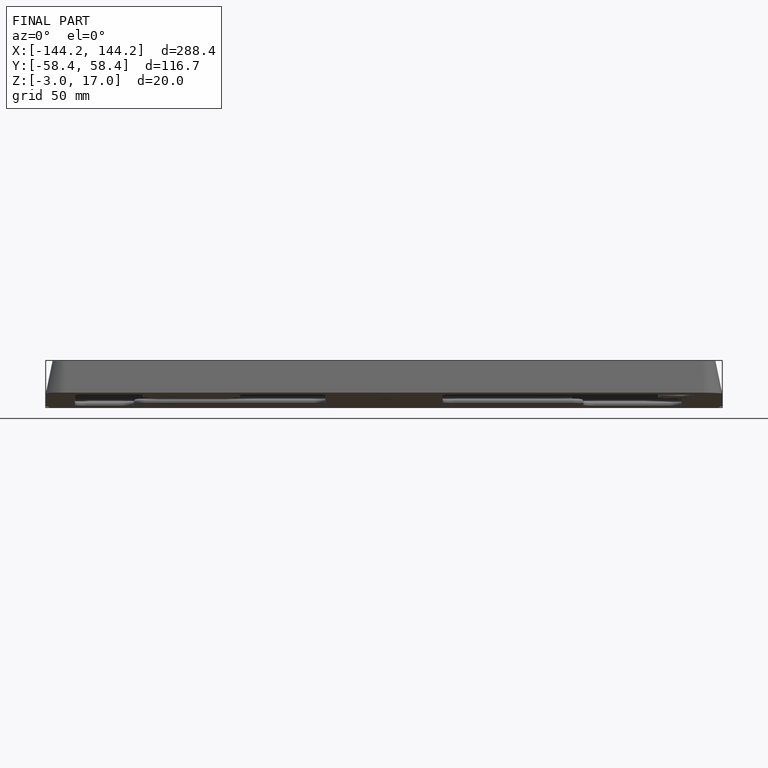
[diagram: finished part — front view with bounding-box wireframe]
